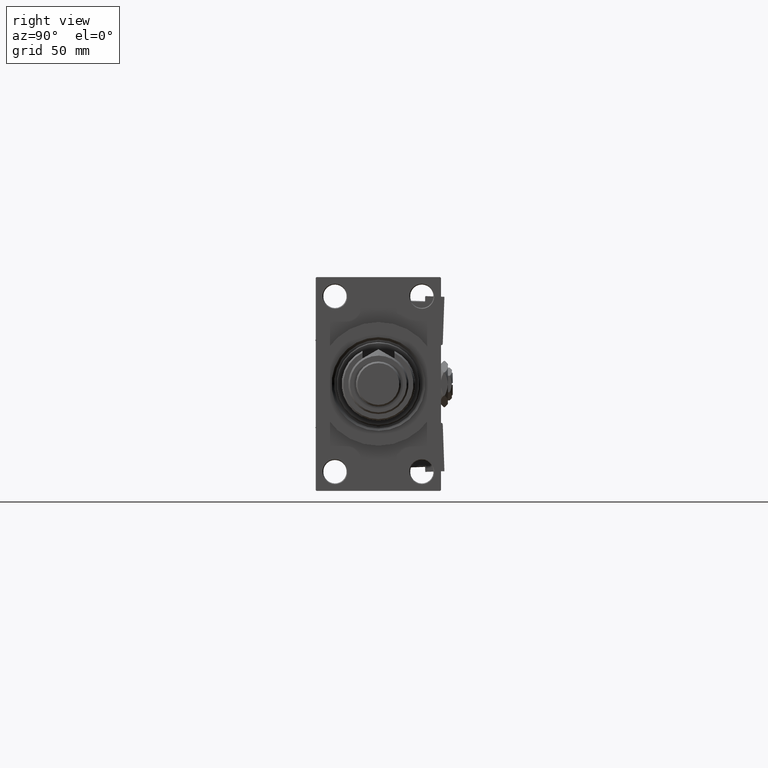
[diagram: clean part render]
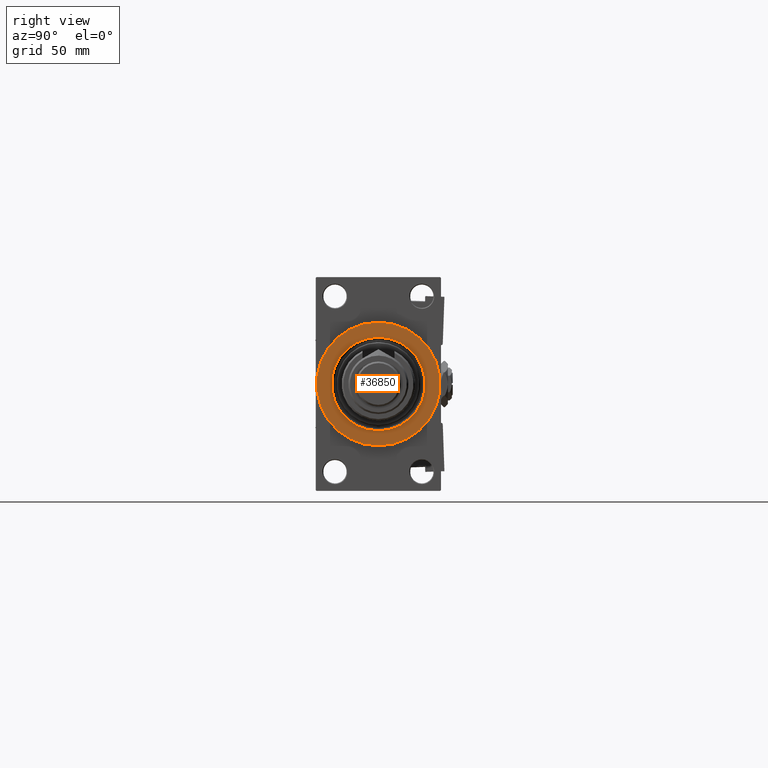
[diagram: same view with one face highlighted and labeled with its STEP entity id]
A machine part, right view. The second image highlights one B-rep face of the part: STEP entity #36850.
In plain terms, the highlighted planar face has unit normal (1, 0, 0).
Its self-contained STEP definition (entity closure, byte-faithful):
#39 = FACE_OUTER_BOUND ( 'NONE', #32181, .T. ) ;
#1457 = CIRCLE ( 'NONE', #32353, 37.00000000000000000 ) ;
#1628 = DIRECTION ( 'NONE',  ( 1.000000000000000000, 0.000000000000000000, 0.000000000000000000 ) ) ;
#2800 = CARTESIAN_POINT ( 'NONE',  ( 259.0000000000000000, 3.429011037612595587E-15, 28.00000000000005329 ) ) ;
#3636 = PLANE ( 'NONE',  #9289 ) ;
#6562 = CARTESIAN_POINT ( 'NONE',  ( 259.0000000000000000, 0.000000000000000000, 0.000000000000000000 ) ) ;
#7953 = AXIS2_PLACEMENT_3D ( 'NONE', #8798, #46940, #42782 ) ;
#8001 = DIRECTION ( 'NONE',  ( 1.000000000000000000, 0.000000000000000000, 0.000000000000000000 ) ) ;
#8185 = CARTESIAN_POINT ( 'NONE',  ( 259.0000000000000000, 0.000000000000000000, -28.00000000000005329 ) ) ;
#8798 = CARTESIAN_POINT ( 'NONE',  ( 259.0000000000000000, 0.000000000000000000, 0.000000000000000000 ) ) ;
#9115 = VERTEX_POINT ( 'NONE', #8185 ) ;
#9289 = AXIS2_PLACEMENT_3D ( 'NONE', #46207, #20786, #46492 ) ;
#9717 = CIRCLE ( 'NONE', #7953, 28.00000000000005329 ) ;
#11158 = DIRECTION ( 'NONE',  ( 0.000000000000000000, 0.000000000000000000, -1.000000000000000000 ) ) ;
#11699 = VERTEX_POINT ( 'NONE', #18452 ) ;
#13630 = EDGE_CURVE ( 'NONE', #11699, #14986, #1457, .T. ) ;
#14490 = ORIENTED_EDGE ( 'NONE', *, *, #28685, .T. ) ;
#14986 = VERTEX_POINT ( 'NONE', #26166 ) ;
#15242 = FACE_BOUND ( 'NONE', #20951, .T. ) ;
#18452 = CARTESIAN_POINT ( 'NONE',  ( 259.0000000000000000, 4.531193156845206793E-15, -37.00000000000000000 ) ) ;
#19899 = CARTESIAN_POINT ( 'NONE',  ( 259.0000000000000000, 0.000000000000000000, 0.000000000000000000 ) ) ;
#20113 = ORIENTED_EDGE ( 'NONE', *, *, #13630, .T. ) ;
#20786 = DIRECTION ( 'NONE',  ( 1.000000000000000000, 0.000000000000000000, 0.000000000000000000 ) ) ;
#20951 = EDGE_LOOP ( 'NONE', ( #14490, #54545 ) ) ;
#23441 = DIRECTION ( 'NONE',  ( 0.000000000000000000, 0.000000000000000000, -1.000000000000000000 ) ) ;
#24375 = EDGE_CURVE ( 'NONE', #38597, #9115, #9717, .T. ) ;
#24976 = CIRCLE ( 'NONE', #33798, 28.00000000000005329 ) ;
#26166 = CARTESIAN_POINT ( 'NONE',  ( 259.0000000000000000, 0.000000000000000000, 37.00000000000000000 ) ) ;
#27912 = DIRECTION ( 'NONE',  ( 0.000000000000000000, 0.000000000000000000, -1.000000000000000000 ) ) ;
#28685 = EDGE_CURVE ( 'NONE', #9115, #38597, #24976, .T. ) ;
#31901 = DIRECTION ( 'NONE',  ( -1.000000000000000000, -0.000000000000000000, -0.000000000000000000 ) ) ;
#32181 = EDGE_LOOP ( 'NONE', ( #53297, #20113 ) ) ;
#32353 = AXIS2_PLACEMENT_3D ( 'NONE', #19899, #8001, #27912 ) ;
#33798 = AXIS2_PLACEMENT_3D ( 'NONE', #49038, #31901, #11158 ) ;
#36850 = ADVANCED_FACE ( 'NONE', ( #15242, #39 ), #3636, .T. ) ;
#38597 = VERTEX_POINT ( 'NONE', #2800 ) ;
#42782 = DIRECTION ( 'NONE',  ( 0.000000000000000000, 0.000000000000000000, -1.000000000000000000 ) ) ;
#45006 = CIRCLE ( 'NONE', #52066, 37.00000000000000000 ) ;
#45426 = EDGE_CURVE ( 'NONE', #14986, #11699, #45006, .T. ) ;
#46207 = CARTESIAN_POINT ( 'NONE',  ( 259.0000000000000000, 0.000000000000000000, 0.000000000000000000 ) ) ;
#46492 = DIRECTION ( 'NONE',  ( 0.000000000000000000, 0.000000000000000000, -1.000000000000000000 ) ) ;
#46940 = DIRECTION ( 'NONE',  ( -1.000000000000000000, -0.000000000000000000, -0.000000000000000000 ) ) ;
#49038 = CARTESIAN_POINT ( 'NONE',  ( 259.0000000000000000, 0.000000000000000000, 0.000000000000000000 ) ) ;
#52066 = AXIS2_PLACEMENT_3D ( 'NONE', #6562, #1628, #23441 ) ;
#53297 = ORIENTED_EDGE ( 'NONE', *, *, #45426, .T. ) ;
#54545 = ORIENTED_EDGE ( 'NONE', *, *, #24375, .T. ) ;